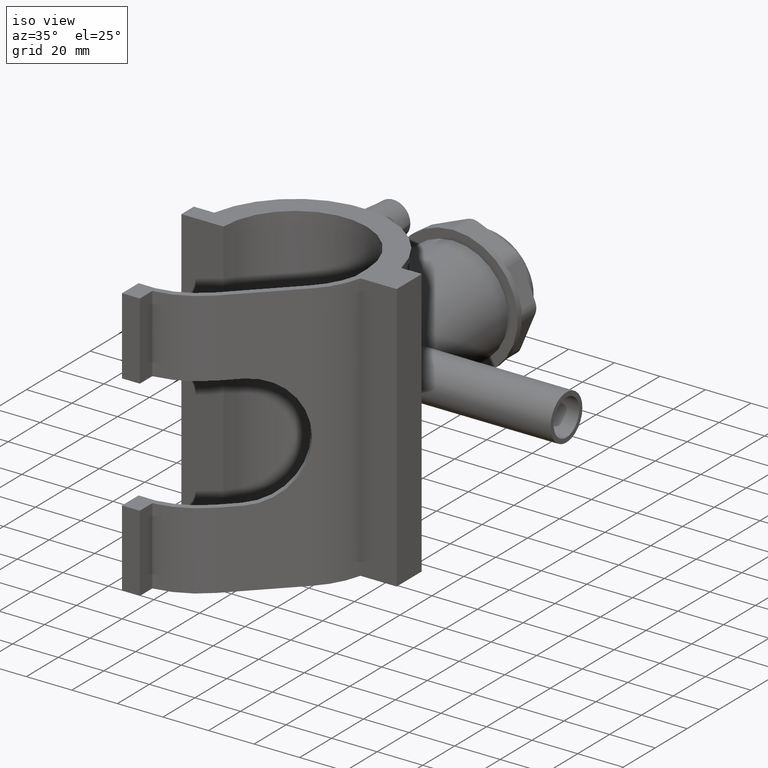
[diagram: clean part render]
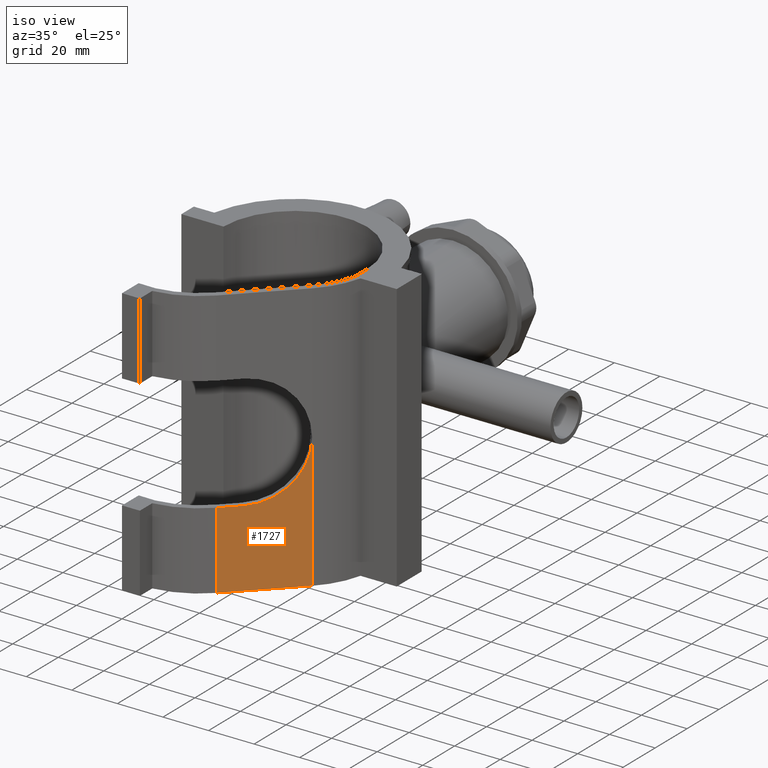
[diagram: same view with one face highlighted and labeled with its STEP entity id]
A machine part, iso view. The second image highlights one B-rep face of the part: STEP entity #1727.
In plain terms, the highlighted planar face has unit normal (0.7071, -0.7071, 0).
Its self-contained STEP definition (entity closure, byte-faithful):
#131=LINE('',#3438,#274);
#147=LINE('',#3481,#290);
#148=LINE('',#3483,#291);
#149=LINE('',#3484,#292);
#274=VECTOR('',#2313,9.77511653963593);
#290=VECTOR('',#2359,33.8);
#291=VECTOR('',#2360,34.975116539636);
#292=VECTOR('',#2361,59.);
#367=PLANE('',#1902);
#442=CIRCLE('',#1891,25.2);
#567=FACE_OUTER_BOUND('',#697,.T.);
#697=EDGE_LOOP('',(#1524,#1525,#1526,#1527,#1528));
#863=VERTEX_POINT('',#3435);
#864=VERTEX_POINT('',#3437);
#866=VERTEX_POINT('',#3444);
#876=VERTEX_POINT('',#3480);
#877=VERTEX_POINT('',#3482);
#1078=EDGE_CURVE('',#864,#863,#131,.T.);
#1082=EDGE_CURVE('',#866,#864,#442,.T.);
#1100=EDGE_CURVE('',#863,#876,#147,.T.);
#1101=EDGE_CURVE('',#877,#876,#148,.T.);
#1102=EDGE_CURVE('',#866,#877,#149,.T.);
#1524=ORIENTED_EDGE('',*,*,#1082,.T.);
#1525=ORIENTED_EDGE('',*,*,#1078,.T.);
#1526=ORIENTED_EDGE('',*,*,#1100,.T.);
#1527=ORIENTED_EDGE('',*,*,#1101,.F.);
#1528=ORIENTED_EDGE('',*,*,#1102,.F.);
#1727=ADVANCED_FACE('',(#567),#367,.T.);
#1891=AXIS2_PLACEMENT_3D('',#3445,#2321,#2322);
#1902=AXIS2_PLACEMENT_3D('',#3479,#2357,#2358);
#2313=DIRECTION('',(-0.707106782026161,-0.707106780346934,1.05735526154777E-15));
#2321=DIRECTION('center_axis',(-0.707106780346934,0.707106782026161,0.));
#2322=DIRECTION('ref_axis',(0.707106782026161,0.707106780346934,0.));
#2357=DIRECTION('center_axis',(0.707106780346934,-0.707106782026161,0.));
#2358=DIRECTION('ref_axis',(-0.707106782026161,-0.707106780346934,0.));
#2359=DIRECTION('',(0.,0.,-1.));
#2360=DIRECTION('',(-0.707106782026161,-0.707106780346934,0.));
#2361=DIRECTION('',(0.,0.,-1.));
#3435=CARTESIAN_POINT('',(-1.1746235539789E-7,-49.4622840972015,-25.2));
#3437=CARTESIAN_POINT('',(6.91205108281031,-42.5502329133435,-25.2));
#3438=CARTESIAN_POINT('',(15.8215965363399,-33.6406874809722,-25.2));
#3444=CARTESIAN_POINT('',(24.7311419898696,-24.7311420486008,0.));
#3445=CARTESIAN_POINT('Origin',(6.91205108281032,-42.5502329133435,0.));
#3479=CARTESIAN_POINT('Origin',(24.7311419898696,-24.7311420486008,59.));
#3480=CARTESIAN_POINT('',(-1.1746235539789E-7,-49.4622840972015,-59.));
#3481=CARTESIAN_POINT('',(-1.1746235539789E-7,-49.4622840972015,59.));
#3482=CARTESIAN_POINT('',(24.7311419898696,-24.7311420486008,-59.));
#3483=CARTESIAN_POINT('',(18.9646582025974,-30.4976258221788,-59.));
#3484=CARTESIAN_POINT('',(24.7311419898696,-24.7311420486008,59.));